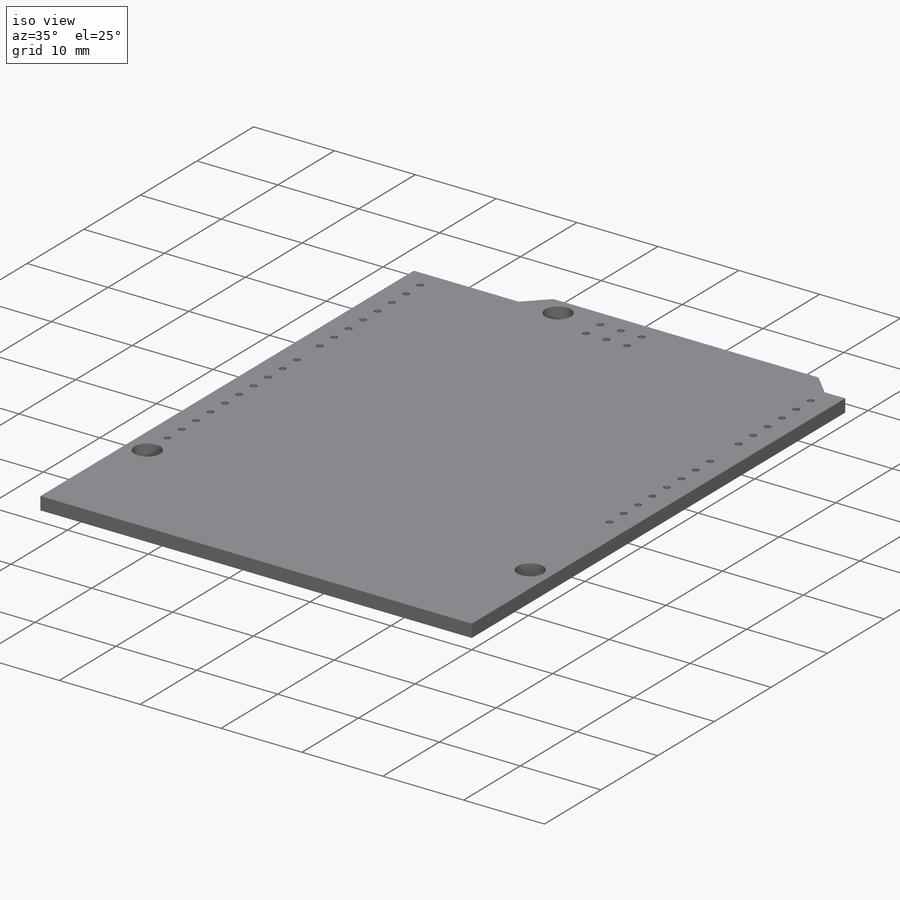
[diagram: iso view]
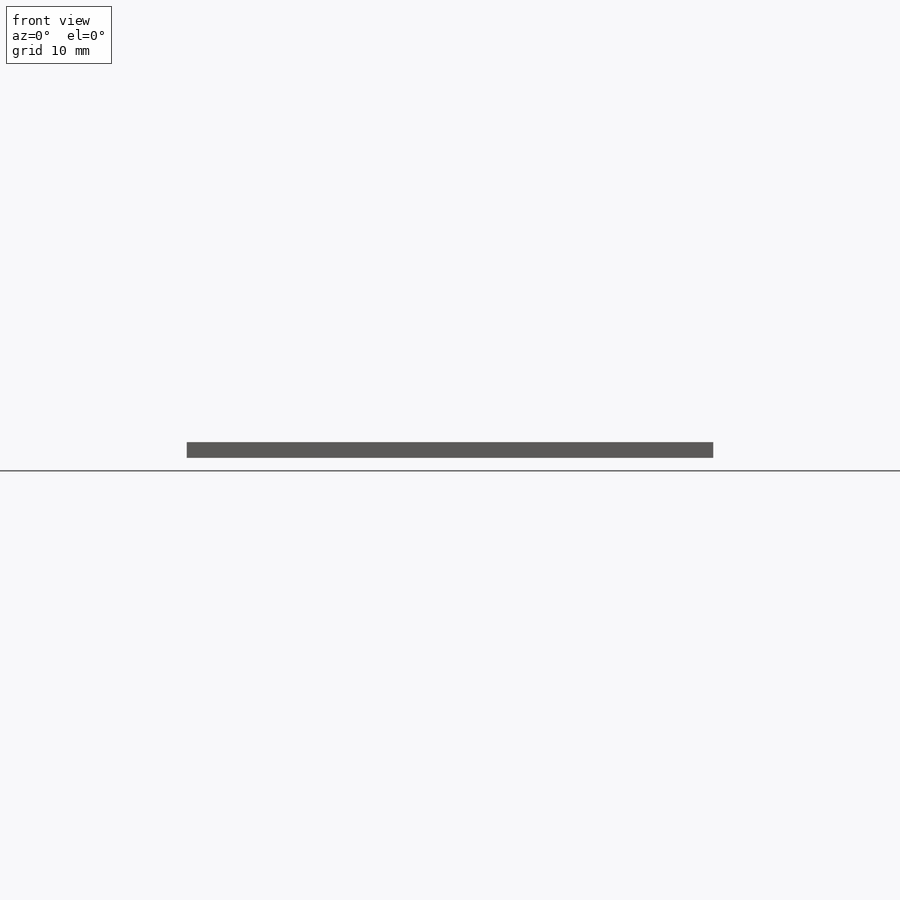
[diagram: front view]
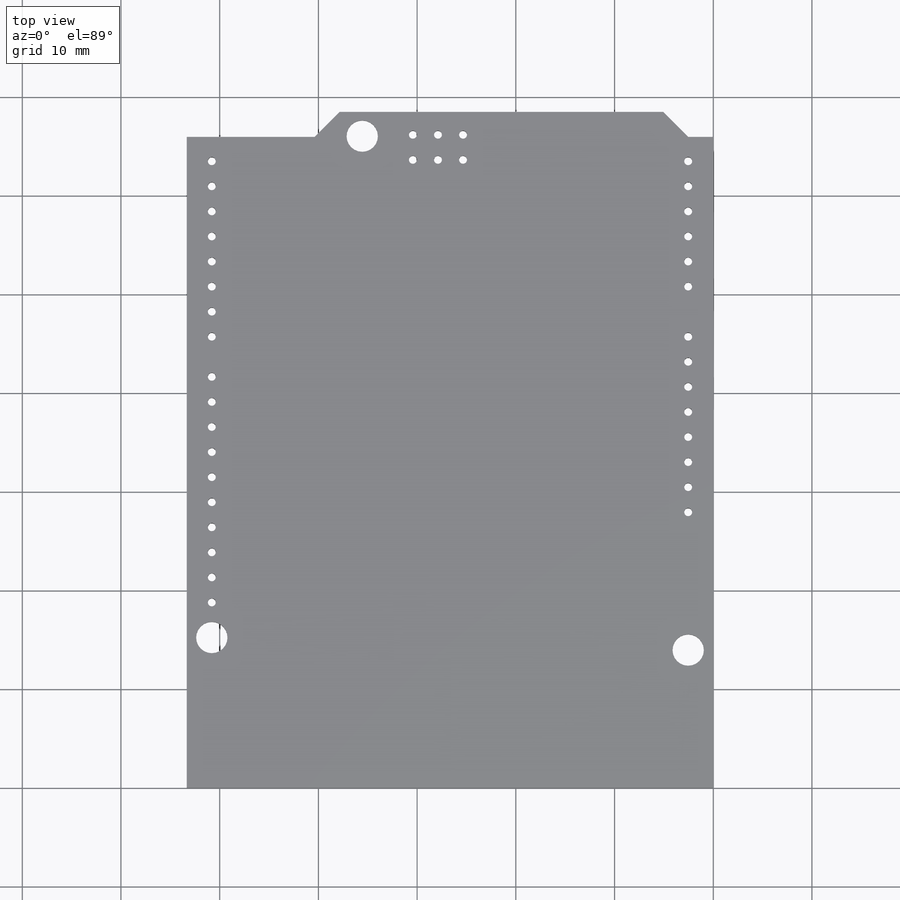
[diagram: top view]
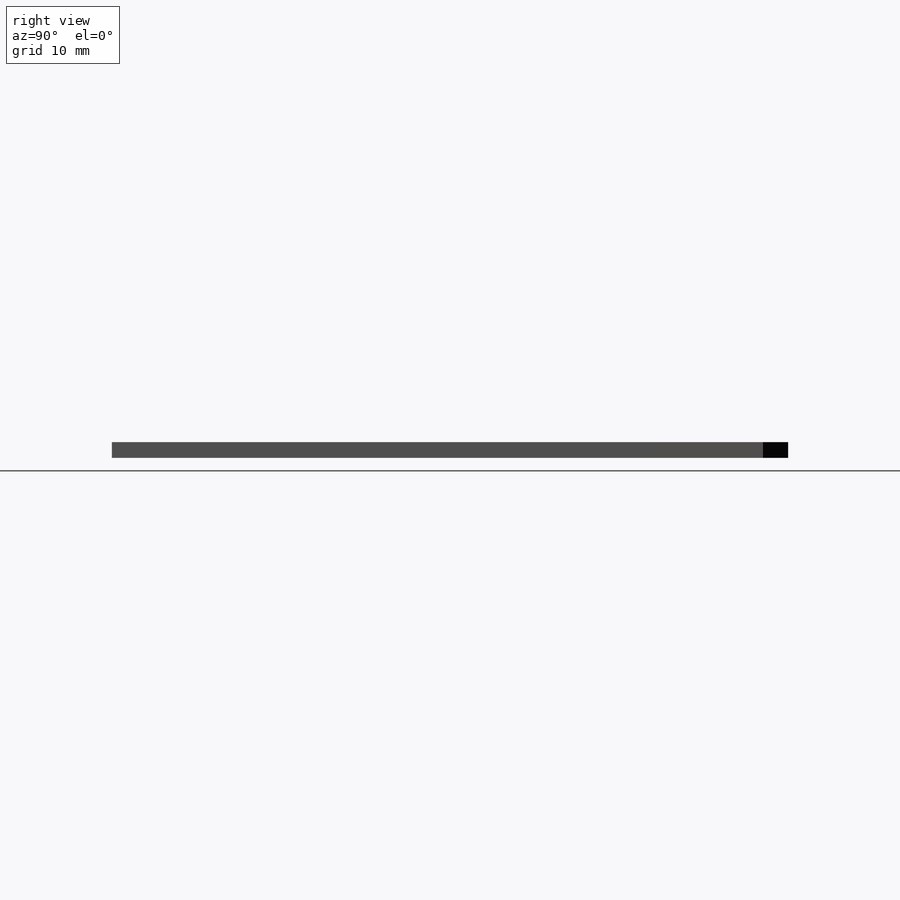
[diagram: right view]
SOLIDWORKS PART (.sldprt)
format: sldprt  version: not decoded by parser v0  size: 673,792 bytes
history: native  units: mm
features: sketch x5, cut_extrude x4, pattern_linear x3, material x1, extrude x1 (+13 scaffold rows collapsed)
feature tree (27):
  scaffold x13  (default folders/planes/origin — collapsed)
  material  "E-Glass Fiber"
  sketch  "Sketch1"  dims[c1.D8=3.175mm c1.D16=0.8mm c1.D3=3.175mm c1.D1=68.5mm c1.D2=53.34mm c2.D3=99.06mm c2.D4=2.54mm c2.D5=5.08mm c2.D6=~3.592102mm c3.D6=45.0deg c4.D6=~4.737352mm c5.D6=45.0deg c5.D7=40.386mm c5.D5=2.54mm c6.D5=45.0deg c6.D9=66.04mm c6.D10=35.56mm c6.D11=7.62mm c6.D12=13.97mm c6.D13=2.54mm c6.D14=15.24mm c6.D15=50.8mm c6.D17=~22.744085mm c6.D16=96.52mm c7.D17=90.17mm c7.D18=2.54mm]
  extrude  "Boss-Extrude1"  Depth=1.6mm
  sketch  "Sketch2"  dims[D1=0.8mm D2=2.54mm D3=27.94mm]
  cut_extrude  "Cut-Extrude1"  Depth=1.65mm
  sketch  "Sketch3"  dims[D2=0.8mm D1=50.8mm D3=18.796mm]
  cut_extrude  "Cut-Extrude2"  Depth=1.65mm
  pattern_linear  "LPattern1"  Count1=15 Count2=1 Spacing1=2.54mm Spacing2=10mm
  sketch  "Sketch4"  dims[D3=0.8mm D1=45.72mm D2=50.8mm]
  cut_extrude  "Cut-Extrude3"  Depth=1.65mm
  pattern_linear  "LPattern2"  Count1=10 Count2=1 Spacing1=2.54mm Spacing2=10mm
  pattern_linear  "LPattern3"  Count1=17 Count2=1 Spacing1=2.54mm Spacing2=10mm
  sketch  "Sketch5"  dims[D4=0.8mm D14=1.0mm D1=2.54mm D2=2.54mm D3=2.54mm D5=63.64mm D6=30.43mm D7=2.54mm D8=2.54mm D9=2.54mm D10=2.54mm D11=2.54mm D12=47.498mm D13=15.748mm D15=5.08mm D16=15.875mm D17=26.035mm]
  cut_extrude  "Cut-Extrude4"  Depth=10mm
decode coverage: 13 of 13 modeling features carry decoded parameters
note: ~ marks probable driven/reference dimensions
note: suppression state not decoded; provenance and decode notes live in map.json
